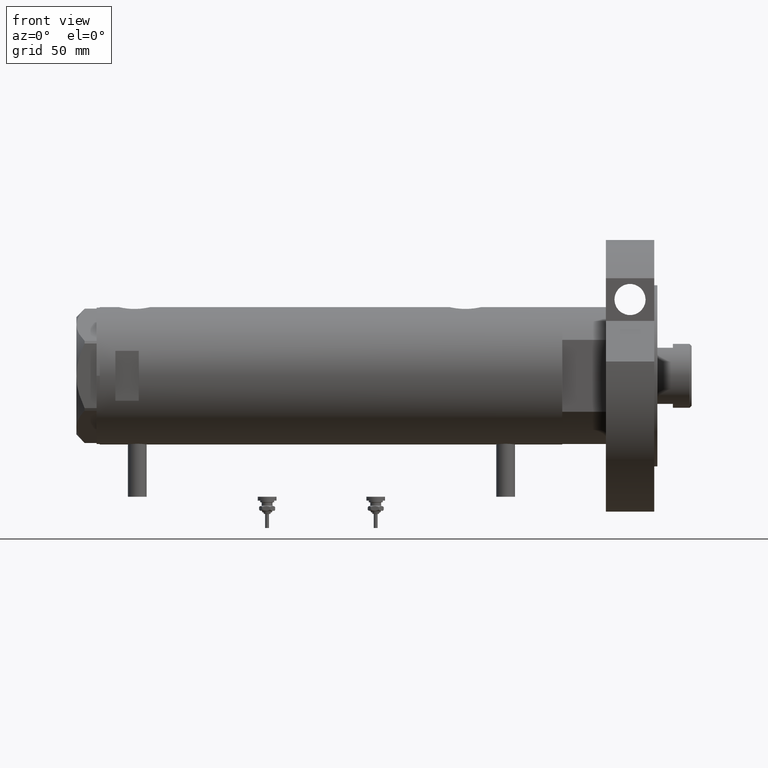
[diagram: clean part render]
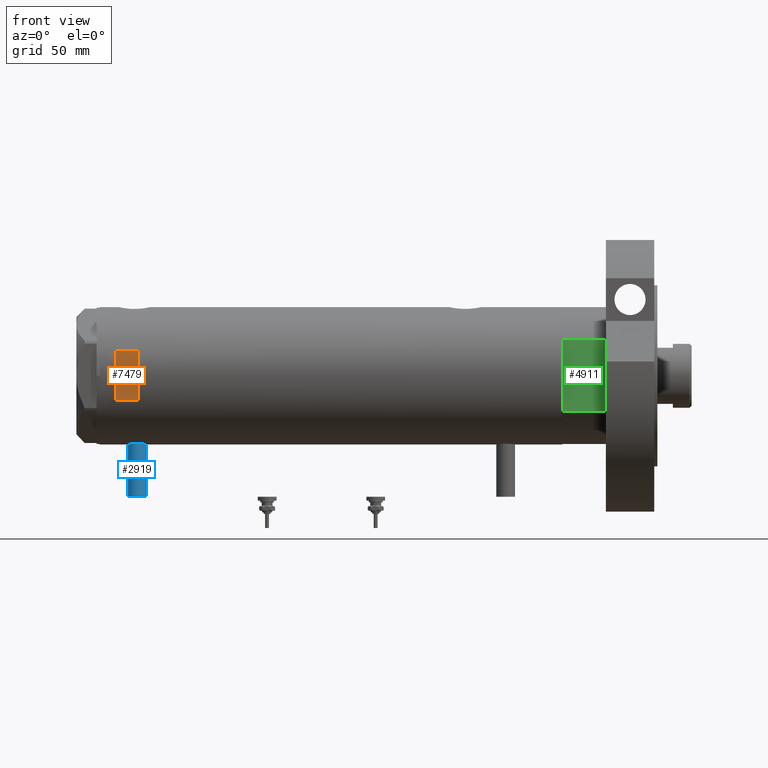
[diagram: same view with three faces highlighted in distinct colors, each labeled with its STEP entity id]
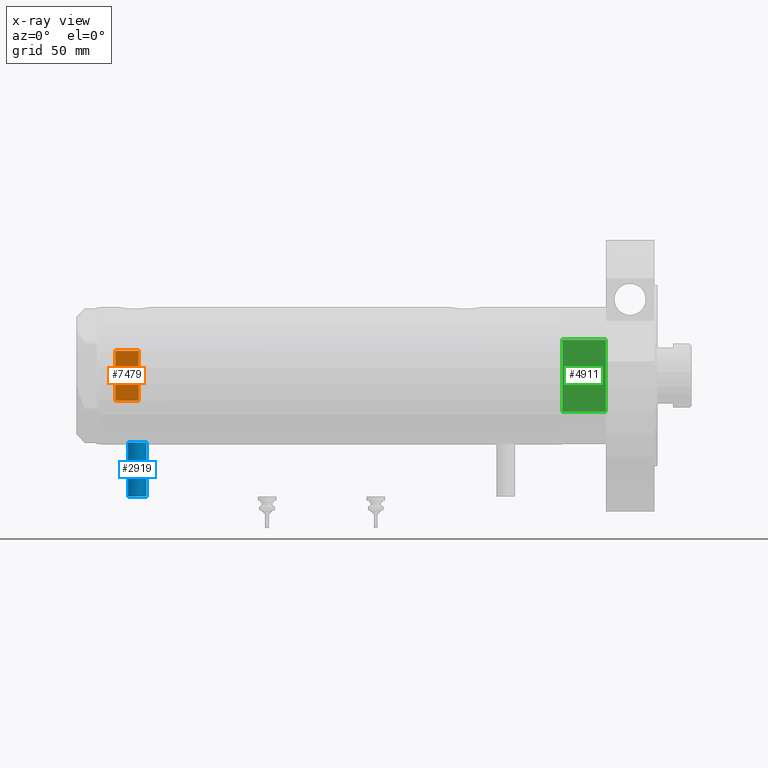
[diagram: x-ray of the same camera — body ghosted, the three highlighted faces saturated]
A machine part, front view with three faces highlighted in distinct colors.
The next image is the same camera in x-ray (body ghosted, the three faces saturated) — at least one of them is partly hidden behind the body in this view.
Their STEP definitions:

[orange] entity #7479 — the highlighted planar face has unit normal (-0, 1, 0).
#73 = FACE_OUTER_BOUND ( 'NONE', #5597, .T. ) ;
#108 = CARTESIAN_POINT ( 'NONE',  ( -15.96871942267132027, -40.99999999999999289, 138.1999999999999886 ) ) ;
#184 = LINE ( 'NONE', #1802, #4642 ) ;
#250 = EDGE_CURVE ( 'NONE', #755, #5091, #6263, .T. ) ;
#539 = DIRECTION ( 'NONE',  ( 1.000000000000000000, -0.000000000000000000, -0.000000000000000000 ) ) ;
#684 = CARTESIAN_POINT ( 'NONE',  ( -44.00000000000000000, -40.99999999999999289, 138.1999999999999886 ) ) ;
#755 = VERTEX_POINT ( 'NONE', #108 ) ;
#994 = LINE ( 'NONE', #3933, #5099 ) ;
#1031 = DIRECTION ( 'NONE',  ( 1.000000000000000000, -0.000000000000000000, -0.000000000000000000 ) ) ;
#1450 = VECTOR ( 'NONE', #1599, 1000.000000000000000 ) ;
#1540 = ORIENTED_EDGE ( 'NONE', *, *, #6229, .T. ) ;
#1599 = DIRECTION ( 'NONE',  ( 0.000000000000000000, 0.000000000000000000, 1.000000000000000000 ) ) ;
#1693 = CARTESIAN_POINT ( 'NONE',  ( 15.96871942267132027, -40.99999999999999289, 123.1999999999999744 ) ) ;
#1802 = CARTESIAN_POINT ( 'NONE',  ( -15.96871942267132027, -40.99999999999999289, -148.1999999999999886 ) ) ;
#1873 = DIRECTION ( 'NONE',  ( -0.000000000000000000, -0.000000000000000000, -1.000000000000000000 ) ) ;
#2195 = CARTESIAN_POINT ( 'NONE',  ( -44.00000000000000000, -40.99999999999999289, 138.1999999999999886 ) ) ;
#3933 = CARTESIAN_POINT ( 'NONE',  ( -44.00000000000000000, -40.99999999999999289, 123.1999999999999886 ) ) ;
#3966 = CARTESIAN_POINT ( 'NONE',  ( 15.96871942267132027, -40.99999999999999289, -148.1999999999999886 ) ) ;
#4208 = CARTESIAN_POINT ( 'NONE',  ( -15.96871942267132027, -40.99999999999999289, 123.1999999999999744 ) ) ;
#4256 = ORIENTED_EDGE ( 'NONE', *, *, #7397, .T. ) ;
#4642 = VECTOR ( 'NONE', #1873, 1000.000000000000000 ) ;
#5091 = VERTEX_POINT ( 'NONE', #5509 ) ;
#5099 = VECTOR ( 'NONE', #1031, 1000.000000000000000 ) ;
#5509 = CARTESIAN_POINT ( 'NONE',  ( 15.96871942267132027, -40.99999999999999289, 138.1999999999999886 ) ) ;
#5597 = EDGE_LOOP ( 'NONE', ( #4256, #6746, #1540, #7328 ) ) ;
#5628 = LINE ( 'NONE', #3966, #1450 ) ;
#5666 = VERTEX_POINT ( 'NONE', #4208 ) ;
#5833 = DIRECTION ( 'NONE',  ( 0.000000000000000000, 1.000000000000000000, 0.000000000000000000 ) ) ;
#5845 = EDGE_CURVE ( 'NONE', #5666, #7300, #994, .T. ) ;
#5869 = DIRECTION ( 'NONE',  ( 0.000000000000000000, -0.000000000000000000, 1.000000000000000000 ) ) ;
#5895 = VECTOR ( 'NONE', #539, 1000.000000000000000 ) ;
#6229 = EDGE_CURVE ( 'NONE', #7300, #5091, #5628, .T. ) ;
#6263 = LINE ( 'NONE', #2195, #5895 ) ;
#6334 = AXIS2_PLACEMENT_3D ( 'NONE', #684, #5833, #5869 ) ;
#6599 = PLANE ( 'NONE',  #6334 ) ;
#6746 = ORIENTED_EDGE ( 'NONE', *, *, #5845, .T. ) ;
#7300 = VERTEX_POINT ( 'NONE', #1693 ) ;
#7328 = ORIENTED_EDGE ( 'NONE', *, *, #250, .F. ) ;
#7397 = EDGE_CURVE ( 'NONE', #755, #5666, #184, .T. ) ;
#7479 = ADVANCED_FACE ( 'NONE', ( #73 ), #6599, .F. ) ;

[blue] entity #2919 — the highlighted cylindrical surface (edge-blend (fillet) strip) has radius 6 mm, axis along (0, 0, 1).
#204 = VECTOR ( 'NONE', #5402, 1000.000000000000000 ) ;
#255 = CARTESIAN_POINT ( 'NONE',  ( -77.50000000000000000, 0.000000000000000000, 118.1999999999999886 ) ) ;
#334 = CARTESIAN_POINT ( 'NONE',  ( -42.79999999999999716, 7.347880794884152277E-16, 130.2000000000000171 ) ) ;
#719 = EDGE_CURVE ( 'NONE', #3076, #788, #3595, .T. ) ;
#788 = VERTEX_POINT ( 'NONE', #6478 ) ;
#974 = VERTEX_POINT ( 'NONE', #334 ) ;
#1093 = VECTOR ( 'NONE', #6590, 1000.000000000000000 ) ;
#1637 = ORIENTED_EDGE ( 'NONE', *, *, #719, .F. ) ;
#1670 = AXIS2_PLACEMENT_3D ( 'NONE', #5975, #1864, #5254 ) ;
#1864 = DIRECTION ( 'NONE',  ( -1.000000000000000000, 0.000000000000000000, 0.000000000000000000 ) ) ;
#1871 = CARTESIAN_POINT ( 'NONE',  ( -77.50000000000000000, 7.347880794884138472E-16, 130.2000000000000171 ) ) ;
#2221 = DIRECTION ( 'NONE',  ( 0.000000000000000000, 0.000000000000000000, 1.000000000000000000 ) ) ;
#2919 = ADVANCED_FACE ( 'NONE', ( #3180 ), #6103, .T. ) ;
#3076 = VERTEX_POINT ( 'NONE', #4556 ) ;
#3095 = LINE ( 'NONE', #1871, #204 ) ;
#3174 = EDGE_CURVE ( 'NONE', #788, #974, #3095, .T. ) ;
#3177 = ORIENTED_EDGE ( 'NONE', *, *, #6174, .T. ) ;
#3180 = FACE_OUTER_BOUND ( 'NONE', #4141, .T. ) ;
#3251 = DIRECTION ( 'NONE',  ( 1.000000000000000000, -0.000000000000000000, -0.000000000000000000 ) ) ;
#3567 = EDGE_CURVE ( 'NONE', #5778, #974, #3853, .T. ) ;
#3595 = CIRCLE ( 'NONE', #5406, 6.000000000000005329 ) ;
#3853 = CIRCLE ( 'NONE', #1670, 6.000000000000005329 ) ;
#4083 = CARTESIAN_POINT ( 'NONE',  ( -77.50000000000000000, 0.000000000000000000, 124.2000000000000028 ) ) ;
#4110 = AXIS2_PLACEMENT_3D ( 'NONE', #5489, #3251, #6638 ) ;
#4141 = EDGE_LOOP ( 'NONE', ( #4376, #1637, #3177, #7454 ) ) ;
#4376 = ORIENTED_EDGE ( 'NONE', *, *, #3174, .F. ) ;
#4556 = CARTESIAN_POINT ( 'NONE',  ( -77.50000000000000000, 0.000000000000000000, 118.1999999999999886 ) ) ;
#4838 = LINE ( 'NONE', #255, #1093 ) ;
#5116 = DIRECTION ( 'NONE',  ( -1.000000000000000000, 0.000000000000000000, 0.000000000000000000 ) ) ;
#5254 = DIRECTION ( 'NONE',  ( 0.000000000000000000, 0.000000000000000000, 1.000000000000000000 ) ) ;
#5402 = DIRECTION ( 'NONE',  ( 1.000000000000000000, -0.000000000000000000, -0.000000000000000000 ) ) ;
#5406 = AXIS2_PLACEMENT_3D ( 'NONE', #4083, #5116, #2221 ) ;
#5489 = CARTESIAN_POINT ( 'NONE',  ( -77.50000000000000000, 0.000000000000000000, 124.2000000000000028 ) ) ;
#5778 = VERTEX_POINT ( 'NONE', #6029 ) ;
#5975 = CARTESIAN_POINT ( 'NONE',  ( -42.79999999999999716, 0.000000000000000000, 124.2000000000000028 ) ) ;
#6029 = CARTESIAN_POINT ( 'NONE',  ( -42.79999999999999716, 0.000000000000000000, 118.1999999999999886 ) ) ;
#6103 = CYLINDRICAL_SURFACE ( 'NONE', #4110, 6.000000000000019540 ) ;
#6174 = EDGE_CURVE ( 'NONE', #3076, #5778, #4838, .T. ) ;
#6478 = CARTESIAN_POINT ( 'NONE',  ( -77.50000000000000000, 7.347880794884152277E-16, 130.2000000000000171 ) ) ;
#6590 = DIRECTION ( 'NONE',  ( 1.000000000000000000, -0.000000000000000000, -0.000000000000000000 ) ) ;
#6638 = DIRECTION ( 'NONE',  ( 0.000000000000000000, 0.000000000000000000, -1.000000000000000000 ) ) ;
#7454 = ORIENTED_EDGE ( 'NONE', *, *, #3567, .T. ) ;

[green] entity #4911 — the highlighted planar face has unit normal (-0, 1, 0).
#80 = CARTESIAN_POINT ( 'NONE',  ( -23.01629857296780557, -37.50000000000000000, 0.000000000000000000 ) ) ;
#121 = LINE ( 'NONE', #4783, #2166 ) ;
#284 = EDGE_CURVE ( 'NONE', #5637, #5649, #3516, .T. ) ;
#1219 = ORIENTED_EDGE ( 'NONE', *, *, #4229, .F. ) ;
#1360 = CARTESIAN_POINT ( 'NONE',  ( -23.01629857296780557, -37.50000000000000000, 27.89999999999999858 ) ) ;
#1388 = ORIENTED_EDGE ( 'NONE', *, *, #6507, .T. ) ;
#1426 = EDGE_CURVE ( 'NONE', #6399, #2957, #2082, .T. ) ;
#1546 = EDGE_LOOP ( 'NONE', ( #6551, #1388, #1219, #5062, #5738, #5275, #4309 ) ) ;
#1687 = AXIS2_PLACEMENT_3D ( 'NONE', #2126, #6768, #3313 ) ;
#2082 = LINE ( 'NONE', #6757, #5296 ) ;
#2126 = CARTESIAN_POINT ( 'NONE',  ( -23.01629857296780557, -37.50000000000000000, 0.000000000000000000 ) ) ;
#2166 = VECTOR ( 'NONE', #7219, 1000.000000000000000 ) ;
#2172 = CARTESIAN_POINT ( 'NONE',  ( 23.01629857296780557, -37.50000000000000000, 0.000000000000000000 ) ) ;
#2354 = CARTESIAN_POINT ( 'NONE',  ( 23.01629857296780557, -37.50000000000000000, 0.000000000000000000 ) ) ;
#2535 = LINE ( 'NONE', #80, #4721 ) ;
#2636 = CARTESIAN_POINT ( 'NONE',  ( -23.01629857296780557, -37.50000000000000000, 27.89999999999999858 ) ) ;
#2645 = CARTESIAN_POINT ( 'NONE',  ( 13.91941090707505957, -37.50000000000000000, 0.000000000000000000 ) ) ;
#2681 = CARTESIAN_POINT ( 'NONE',  ( -23.01629857296780557, -37.50000000000000000, 0.000000000000000000 ) ) ;
#2749 = EDGE_CURVE ( 'NONE', #3384, #6887, #2535, .T. ) ;
#2804 = CARTESIAN_POINT ( 'NONE',  ( -23.01629857296780557, -37.50000000000000000, 27.89999999999999858 ) ) ;
#2834 = EDGE_CURVE ( 'NONE', #2957, #3384, #121, .T. ) ;
#2957 = VERTEX_POINT ( 'NONE', #2645 ) ;
#3135 = VECTOR ( 'NONE', #4521, 1000.000000000000000 ) ;
#3172 = CARTESIAN_POINT ( 'NONE',  ( -13.91941090707505957, -37.50000000000000000, 0.000000000000000000 ) ) ;
#3274 = FACE_OUTER_BOUND ( 'NONE', #1546, .T. ) ;
#3313 = DIRECTION ( 'NONE',  ( 0.000000000000000000, -0.000000000000000000, 1.000000000000000000 ) ) ;
#3384 = VERTEX_POINT ( 'NONE', #3172 ) ;
#3516 = LINE ( 'NONE', #2804, #4445 ) ;
#3847 = DIRECTION ( 'NONE',  ( -0.000000000000000000, -0.000000000000000000, 1.000000000000000000 ) ) ;
#4229 = EDGE_CURVE ( 'NONE', #6887, #4569, #6257, .T. ) ;
#4309 = ORIENTED_EDGE ( 'NONE', *, *, #6281, .T. ) ;
#4445 = VECTOR ( 'NONE', #5194, 1000.000000000000000 ) ;
#4521 = DIRECTION ( 'NONE',  ( -0.000000000000000000, -0.000000000000000000, 1.000000000000000000 ) ) ;
#4569 = VERTEX_POINT ( 'NONE', #2636 ) ;
#4721 = VECTOR ( 'NONE', #6026, 1000.000000000000000 ) ;
#4761 = LINE ( 'NONE', #1360, #5591 ) ;
#4783 = CARTESIAN_POINT ( 'NONE',  ( -23.01629857296780557, -37.50000000000000000, 0.000000000000000000 ) ) ;
#4911 = ADVANCED_FACE ( 'NONE', ( #3274 ), #6814, .F. ) ;
#5026 = LINE ( 'NONE', #2172, #5586 ) ;
#5062 = ORIENTED_EDGE ( 'NONE', *, *, #2749, .F. ) ;
#5194 = DIRECTION ( 'NONE',  ( -1.000000000000000000, -0.000000000000000000, -0.000000000000000000 ) ) ;
#5275 = ORIENTED_EDGE ( 'NONE', *, *, #1426, .F. ) ;
#5296 = VECTOR ( 'NONE', #7259, 1000.000000000000000 ) ;
#5586 = VECTOR ( 'NONE', #3847, 1000.000000000000000 ) ;
#5591 = VECTOR ( 'NONE', #6041, 1000.000000000000000 ) ;
#5637 = VERTEX_POINT ( 'NONE', #5878 ) ;
#5649 = VERTEX_POINT ( 'NONE', #6419 ) ;
#5738 = ORIENTED_EDGE ( 'NONE', *, *, #2834, .F. ) ;
#5878 = CARTESIAN_POINT ( 'NONE',  ( 23.01629857296780557, -37.50000000000000000, 27.89999999999999858 ) ) ;
#6026 = DIRECTION ( 'NONE',  ( -1.000000000000000000, -0.000000000000000000, -0.000000000000000000 ) ) ;
#6041 = DIRECTION ( 'NONE',  ( -1.000000000000000000, -0.000000000000000000, -0.000000000000000000 ) ) ;
#6257 = LINE ( 'NONE', #2681, #3135 ) ;
#6281 = EDGE_CURVE ( 'NONE', #6399, #5637, #5026, .T. ) ;
#6399 = VERTEX_POINT ( 'NONE', #2354 ) ;
#6419 = CARTESIAN_POINT ( 'NONE',  ( 0.000000000000000000, -37.50000000000000000, 27.89999999999999858 ) ) ;
#6507 = EDGE_CURVE ( 'NONE', #5649, #4569, #4761, .T. ) ;
#6551 = ORIENTED_EDGE ( 'NONE', *, *, #284, .T. ) ;
#6757 = CARTESIAN_POINT ( 'NONE',  ( -23.01629857296780557, -37.50000000000000000, 0.000000000000000000 ) ) ;
#6768 = DIRECTION ( 'NONE',  ( -0.000000000000000000, 1.000000000000000000, 0.000000000000000000 ) ) ;
#6814 = PLANE ( 'NONE',  #1687 ) ;
#6887 = VERTEX_POINT ( 'NONE', #7495 ) ;
#7219 = DIRECTION ( 'NONE',  ( -1.000000000000000000, -0.000000000000000000, -0.000000000000000000 ) ) ;
#7259 = DIRECTION ( 'NONE',  ( -1.000000000000000000, -0.000000000000000000, -0.000000000000000000 ) ) ;
#7495 = CARTESIAN_POINT ( 'NONE',  ( -23.01629857296780557, -37.50000000000000000, 0.000000000000000000 ) ) ;